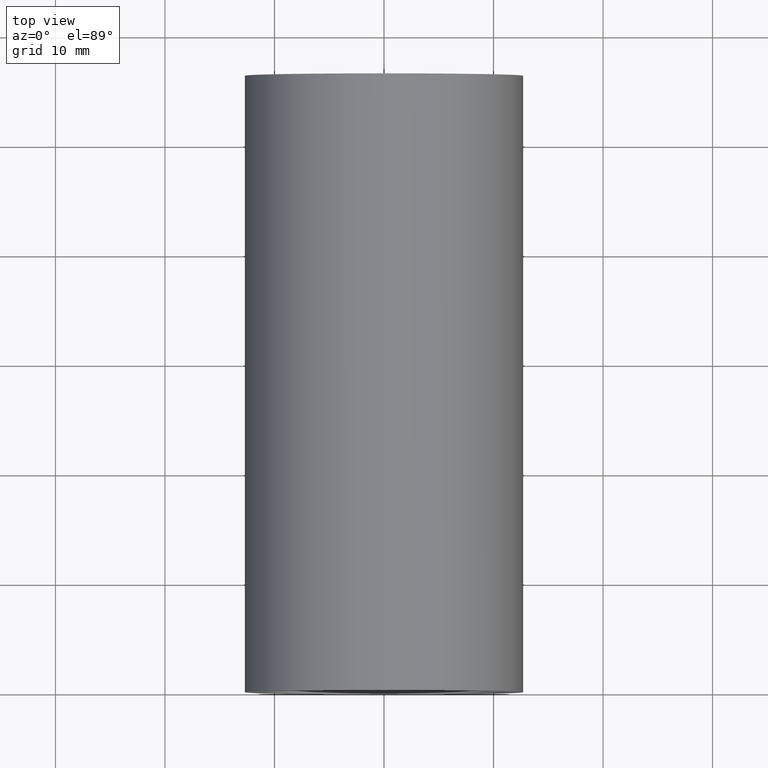
[diagram: clean part render]
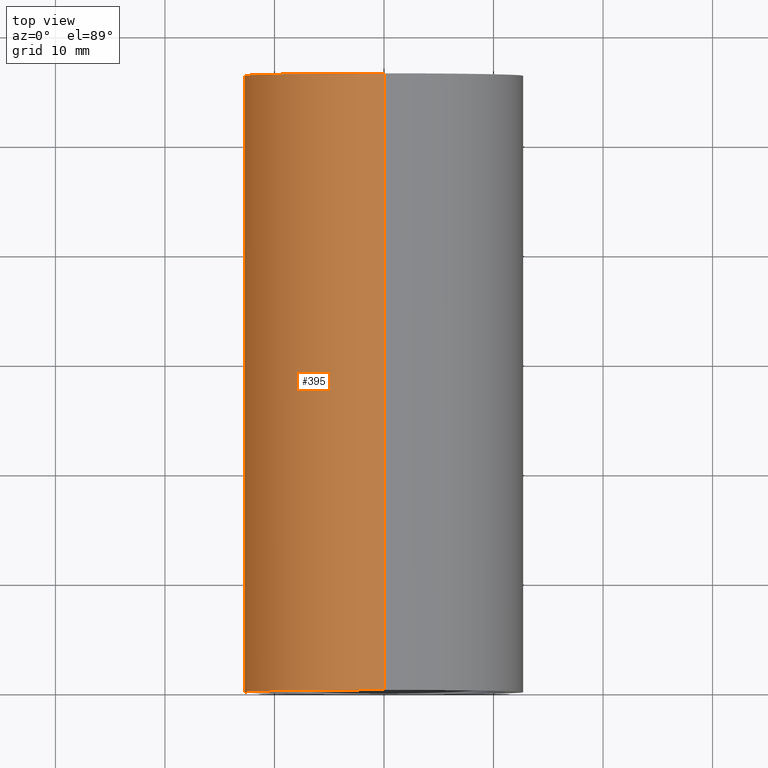
[diagram: same view with one face highlighted and labeled with its STEP entity id]
A machine part, top view. The second image highlights one B-rep face of the part: STEP entity #395.
In plain terms, the highlighted cylindrical surface (partial cylindrical patch) has radius 12.7 mm, axis along (-0, 1, -0).
Its self-contained STEP definition (entity closure, byte-faithful):
#12 = CARTESIAN_POINT ( 'NONE',  ( 0.0000000000000000000, 161.3761669434274500, 12.70000000000001900 ) ) ;
#44 = AXIS2_PLACEMENT_3D ( 'NONE', #427, #530, #236 ) ;
#45 = DIRECTION ( 'NONE',  ( 0.0000000000000000000, 0.0000000000000000000, 1.000000000000000000 ) ) ;
#55 = VERTEX_POINT ( 'NONE', #469 ) ;
#60 = VECTOR ( 'NONE', #547, 1000.000000000000000 ) ;
#81 = ORIENTED_EDGE ( 'NONE', *, *, #359, .F. ) ;
#92 = DIRECTION ( 'NONE',  ( 0.0000000000000000000, 0.0000000000000000000, 1.000000000000000000 ) ) ;
#93 = EDGE_CURVE ( 'NONE', #102, #169, #109, .T. ) ;
#99 = ORIENTED_EDGE ( 'NONE', *, *, #462, .T. ) ;
#102 = VERTEX_POINT ( 'NONE', #308 ) ;
#109 = LINE ( 'NONE', #312, #60 ) ;
#133 = CARTESIAN_POINT ( 'NONE',  ( 0.0000000000000000000, -2.775557561562891400E-014, 12.70000000000001900 ) ) ;
#145 = CARTESIAN_POINT ( 'NONE',  ( 0.0000000000000000000, -2.775557561562891400E-014, 0.0000000000000000000 ) ) ;
#164 = EDGE_CURVE ( 'NONE', #374, #55, #211, .T. ) ;
#169 = VERTEX_POINT ( 'NONE', #355 ) ;
#185 = DIRECTION ( 'NONE',  ( -0.0000000000000000000, 1.000000000000000000, -0.0000000000000000000 ) ) ;
#193 = DIRECTION ( 'NONE',  ( -0.0000000000000000000, 1.000000000000000000, -0.0000000000000000000 ) ) ;
#197 = ORIENTED_EDGE ( 'NONE', *, *, #93, .F. ) ;
#201 = DIRECTION ( 'NONE',  ( -0.0000000000000000000, 1.000000000000000000, -0.0000000000000000000 ) ) ;
#203 = CIRCLE ( 'NONE', #225, 12.70000000000001900 ) ;
#211 = LINE ( 'NONE', #12, #228 ) ;
#225 = AXIS2_PLACEMENT_3D ( 'NONE', #145, #193, #45 ) ;
#228 = VECTOR ( 'NONE', #201, 1000.000000000000000 ) ;
#236 = DIRECTION ( 'NONE',  ( 0.0000000000000000000, 0.0000000000000000000, 1.000000000000000000 ) ) ;
#245 = EDGE_LOOP ( 'NONE', ( #197, #99, #536, #81 ) ) ;
#308 = CARTESIAN_POINT ( 'NONE',  ( 1.555301434917140800E-015, -2.775557561562891400E-014, -12.70000000000001900 ) ) ;
#312 = CARTESIAN_POINT ( 'NONE',  ( 1.555301434917140800E-015, 161.3761669434274500, -12.70000000000001900 ) ) ;
#330 = CIRCLE ( 'NONE', #513, 12.70000000000001900 ) ;
#342 = CYLINDRICAL_SURFACE ( 'NONE', #44, 12.70000000000001900 ) ;
#355 = CARTESIAN_POINT ( 'NONE',  ( 1.555301434917140800E-015, 56.29999999999999000, -12.70000000000001900 ) ) ;
#359 = EDGE_CURVE ( 'NONE', #169, #55, #330, .T. ) ;
#374 = VERTEX_POINT ( 'NONE', #133 ) ;
#395 = ADVANCED_FACE ( 'NONE', ( #525 ), #342, .T. ) ;
#427 = CARTESIAN_POINT ( 'NONE',  ( 0.0000000000000000000, 161.3761669434274500, 0.0000000000000000000 ) ) ;
#462 = EDGE_CURVE ( 'NONE', #102, #374, #203, .T. ) ;
#469 = CARTESIAN_POINT ( 'NONE',  ( 0.0000000000000000000, 56.29999999999999000, 12.70000000000001900 ) ) ;
#513 = AXIS2_PLACEMENT_3D ( 'NONE', #573, #185, #92 ) ;
#525 = FACE_OUTER_BOUND ( 'NONE', #245, .T. ) ;
#530 = DIRECTION ( 'NONE',  ( -0.0000000000000000000, 1.000000000000000000, -0.0000000000000000000 ) ) ;
#536 = ORIENTED_EDGE ( 'NONE', *, *, #164, .T. ) ;
#547 = DIRECTION ( 'NONE',  ( -0.0000000000000000000, 1.000000000000000000, -0.0000000000000000000 ) ) ;
#573 = CARTESIAN_POINT ( 'NONE',  ( 0.0000000000000000000, 56.29999999999999000, 0.0000000000000000000 ) ) ;